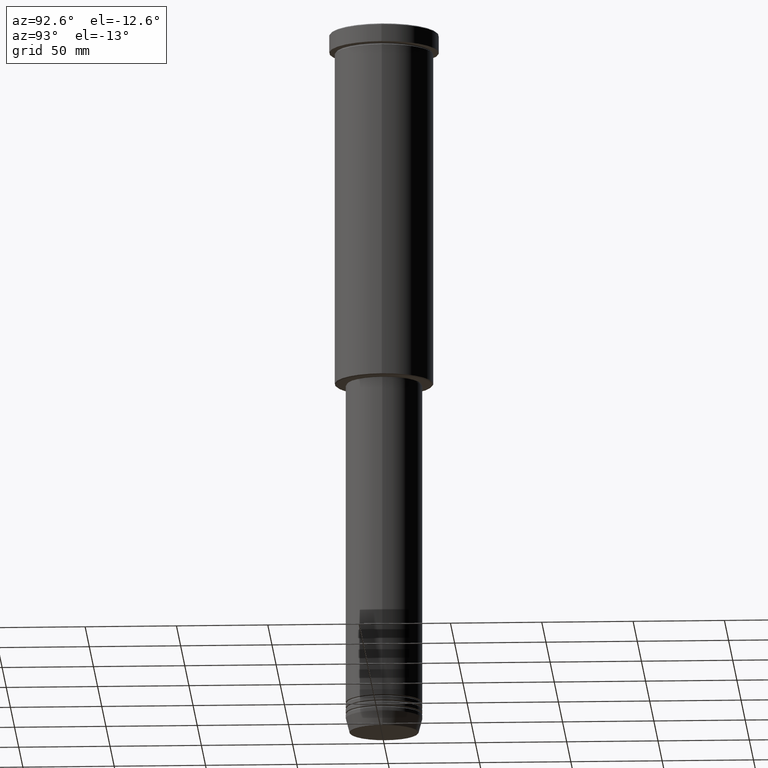
[diagram: clean part render]
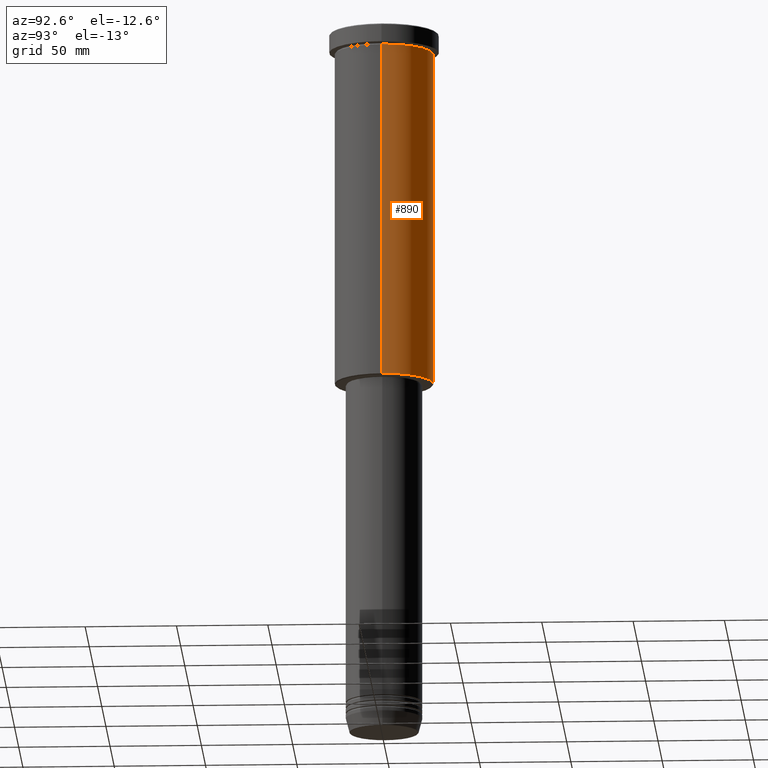
[diagram: same view with one face highlighted and labeled with its STEP entity id]
A machine part, auxiliary view. The second image highlights one B-rep face of the part: STEP entity #890.
In plain terms, the highlighted cylindrical surface (partial cylindrical patch) has radius 27 mm, axis along (-0, -0, 1).
Its self-contained STEP definition (entity closure, byte-faithful):
#13 = CARTESIAN_POINT ( 'NONE',  ( 0.000000000000000000, 0.000000000000000000, -10.99999999999999289 ) ) ;
#14 = FACE_OUTER_BOUND ( 'NONE', #215, .T. ) ;
#64 = DIRECTION ( 'NONE',  ( -0.000000000000000000, -0.000000000000000000, 1.000000000000000000 ) ) ;
#79 = DIRECTION ( 'NONE',  ( -1.000000000000000000, 0.000000000000000000, 0.000000000000000000 ) ) ;
#88 = DIRECTION ( 'NONE',  ( -0.000000000000000000, -0.000000000000000000, 1.000000000000000000 ) ) ;
#109 = ORIENTED_EDGE ( 'NONE', *, *, #557, .F. ) ;
#113 = CYLINDRICAL_SURFACE ( 'NONE', #352, 27.00000000000000355 ) ;
#120 = CARTESIAN_POINT ( 'NONE',  ( -27.00000000000000355, 3.306546357697854128E-15, -10.99999999999999289 ) ) ;
#161 = EDGE_CURVE ( 'NONE', #753, #1043, #990, .T. ) ;
#169 = LINE ( 'NONE', #898, #274 ) ;
#200 = VERTEX_POINT ( 'NONE', #292 ) ;
#213 = CARTESIAN_POINT ( 'NONE',  ( 0.000000000000000000, 0.000000000000000000, 0.000000000000000000 ) ) ;
#215 = EDGE_LOOP ( 'NONE', ( #613, #1090, #688, #109 ) ) ;
#274 = VECTOR ( 'NONE', #64, 1000.000000000000000 ) ;
#292 = CARTESIAN_POINT ( 'NONE',  ( 27.00000000000000355, 0.000000000000000000, -195.5000000000000284 ) ) ;
#352 = AXIS2_PLACEMENT_3D ( 'NONE', #213, #88, #677 ) ;
#425 = CIRCLE ( 'NONE', #492, 27.00000000000000355 ) ;
#492 = AXIS2_PLACEMENT_3D ( 'NONE', #641, #549, #79 ) ;
#549 = DIRECTION ( 'NONE',  ( -0.000000000000000000, -0.000000000000000000, 1.000000000000000000 ) ) ;
#557 = EDGE_CURVE ( 'NONE', #200, #753, #1042, .T. ) ;
#562 = VERTEX_POINT ( 'NONE', #958 ) ;
#573 = DIRECTION ( 'NONE',  ( 1.000000000000000000, 0.000000000000000000, 0.000000000000000000 ) ) ;
#613 = ORIENTED_EDGE ( 'NONE', *, *, #748, .T. ) ;
#631 = CARTESIAN_POINT ( 'NONE',  ( 27.00000000000000355, 0.000000000000000000, -10.99999999999999289 ) ) ;
#641 = CARTESIAN_POINT ( 'NONE',  ( 0.000000000000000000, 0.000000000000000000, -195.5000000000000284 ) ) ;
#677 = DIRECTION ( 'NONE',  ( 1.000000000000000000, 0.000000000000000000, 0.000000000000000000 ) ) ;
#686 = CARTESIAN_POINT ( 'NONE',  ( 27.00000000000000355, 0.000000000000000000, 0.000000000000000000 ) ) ;
#688 = ORIENTED_EDGE ( 'NONE', *, *, #161, .F. ) ;
#739 = EDGE_CURVE ( 'NONE', #562, #1043, #169, .T. ) ;
#748 = EDGE_CURVE ( 'NONE', #200, #562, #425, .T. ) ;
#753 = VERTEX_POINT ( 'NONE', #631 ) ;
#890 = ADVANCED_FACE ( 'NONE', ( #14 ), #113, .T. ) ;
#898 = CARTESIAN_POINT ( 'NONE',  ( -27.00000000000000355, 3.306546357697854128E-15, 0.000000000000000000 ) ) ;
#953 = AXIS2_PLACEMENT_3D ( 'NONE', #13, #1021, #573 ) ;
#958 = CARTESIAN_POINT ( 'NONE',  ( -27.00000000000000355, 3.306546357697854128E-15, -195.5000000000000284 ) ) ;
#990 = CIRCLE ( 'NONE', #953, 27.00000000000000355 ) ;
#1021 = DIRECTION ( 'NONE',  ( -0.000000000000000000, -0.000000000000000000, 1.000000000000000000 ) ) ;
#1042 = LINE ( 'NONE', #686, #1156 ) ;
#1043 = VERTEX_POINT ( 'NONE', #120 ) ;
#1090 = ORIENTED_EDGE ( 'NONE', *, *, #739, .T. ) ;
#1143 = DIRECTION ( 'NONE',  ( -0.000000000000000000, -0.000000000000000000, 1.000000000000000000 ) ) ;
#1156 = VECTOR ( 'NONE', #1143, 1000.000000000000000 ) ;